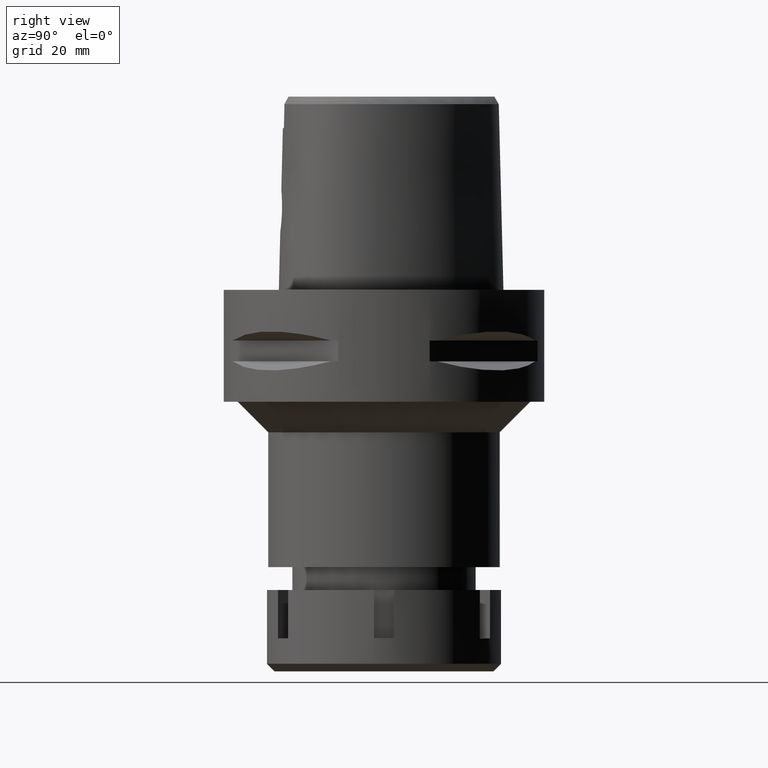
[diagram: clean part render]
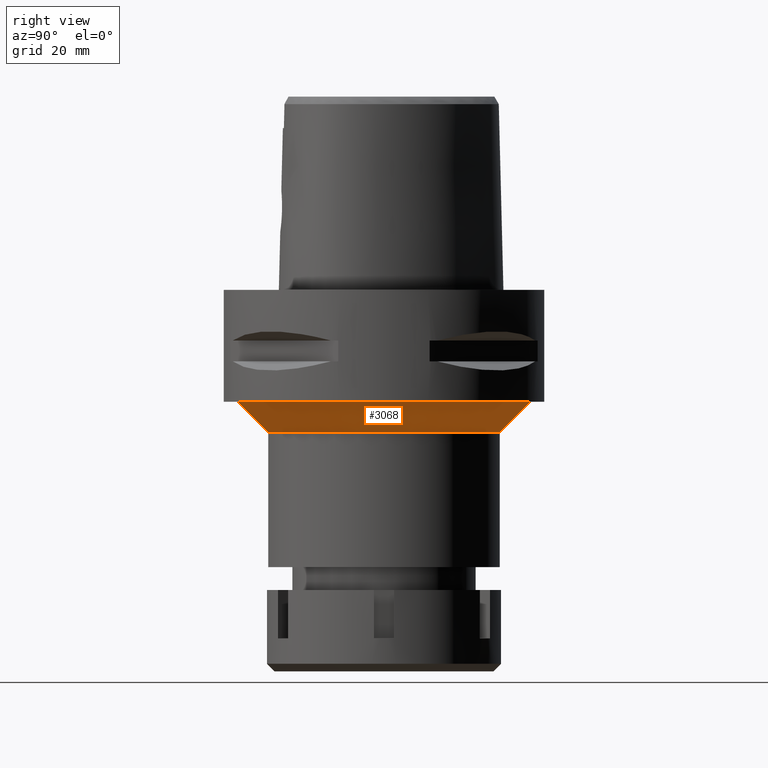
[diagram: same view with one face highlighted and labeled with its STEP entity id]
A machine part, right view. The second image highlights one B-rep face of the part: STEP entity #3068.
In plain terms, the highlighted conical surface has half-angle 45 deg.
Its self-contained STEP definition (entity closure, byte-faithful):
#315 = CONICAL_SURFACE ( 'NONE', #3606, 25.75000000000000000, 0.7853981633972997312 ) ;
#327 = CARTESIAN_POINT ( 'NONE',  ( 0.0000000000000000000, 0.0000000000000000000, -25.00000000000000000 ) ) ;
#666 = AXIS2_PLACEMENT_3D ( 'NONE', #1339, #4212, #3060 ) ;
#769 = AXIS2_PLACEMENT_3D ( 'NONE', #2936, #3271, #777 ) ;
#777 = DIRECTION ( 'NONE',  ( 0.0000000000000000000, 1.000000000000000000, 0.0000000000000000000 ) ) ;
#782 = EDGE_LOOP ( 'NONE', ( #2649, #1687, #2759, #1644 ) ) ;
#884 = DIRECTION ( 'NONE',  ( 0.0000000000000000000, 0.7071067811865474617, -0.7071067811865474617 ) ) ;
#1302 = CARTESIAN_POINT ( 'NONE',  ( 0.0000000000000000000, -28.75000000000000000, -22.00000000000000000 ) ) ;
#1339 = CARTESIAN_POINT ( 'NONE',  ( 0.0000000000000000000, 0.0000000000000000000, -28.00000000000000000 ) ) ;
#1644 = ORIENTED_EDGE ( 'NONE', *, *, #3957, .F. ) ;
#1687 = ORIENTED_EDGE ( 'NONE', *, *, #2872, .T. ) ;
#1921 = VERTEX_POINT ( 'NONE', #3733 ) ;
#2051 = EDGE_CURVE ( 'NONE', #3387, #2294, #5081, .T. ) ;
#2294 = VERTEX_POINT ( 'NONE', #4000 ) ;
#2649 = ORIENTED_EDGE ( 'NONE', *, *, #2051, .T. ) ;
#2665 = CARTESIAN_POINT ( 'NONE',  ( 0.0000000000000000000, 28.75000000000000000, -22.00000000000000000 ) ) ;
#2759 = ORIENTED_EDGE ( 'NONE', *, *, #3418, .F. ) ;
#2872 = EDGE_CURVE ( 'NONE', #2294, #4677, #5070, .T. ) ;
#2936 = CARTESIAN_POINT ( 'NONE',  ( 0.0000000000000000000, 0.0000000000000000000, -22.00000000000000000 ) ) ;
#3060 = DIRECTION ( 'NONE',  ( 0.0000000000000000000, 1.000000000000000000, 0.0000000000000000000 ) ) ;
#3068 = ADVANCED_FACE ( 'NONE', ( #5374 ), #315, .T. ) ;
#3266 = DIRECTION ( 'NONE',  ( 0.0000000000000000000, 0.0000000000000000000, 1.000000000000000000 ) ) ;
#3271 = DIRECTION ( 'NONE',  ( 0.0000000000000000000, 0.0000000000000000000, -1.000000000000000000 ) ) ;
#3387 = VERTEX_POINT ( 'NONE', #3441 ) ;
#3418 = EDGE_CURVE ( 'NONE', #1921, #4677, #5061, .T. ) ;
#3441 = CARTESIAN_POINT ( 'NONE',  ( 0.0000000000000000000, 28.75000000000000000, -22.00000000000000000 ) ) ;
#3606 = AXIS2_PLACEMENT_3D ( 'NONE', #327, #3266, #3707 ) ;
#3707 = DIRECTION ( 'NONE',  ( 0.0000000000000000000, 1.000000000000000000, 0.0000000000000000000 ) ) ;
#3733 = CARTESIAN_POINT ( 'NONE',  ( 0.0000000000000000000, 22.75000000000000000, -28.00000000000000000 ) ) ;
#3927 = LINE ( 'NONE', #2665, #4805 ) ;
#3952 = VECTOR ( 'NONE', #884, 1000.000000000000114 ) ;
#3957 = EDGE_CURVE ( 'NONE', #3387, #1921, #3927, .T. ) ;
#4000 = CARTESIAN_POINT ( 'NONE',  ( 0.0000000000000000000, -28.75000000000000000, -22.00000000000000000 ) ) ;
#4212 = DIRECTION ( 'NONE',  ( 0.0000000000000000000, 0.0000000000000000000, -1.000000000000000000 ) ) ;
#4393 = CARTESIAN_POINT ( 'NONE',  ( 0.0000000000000000000, -22.75000000000000000, -28.00000000000000000 ) ) ;
#4677 = VERTEX_POINT ( 'NONE', #4393 ) ;
#4805 = VECTOR ( 'NONE', #5187, 1000.000000000000114 ) ;
#5061 = CIRCLE ( 'NONE', #666, 22.75000000000000000 ) ;
#5070 = LINE ( 'NONE', #1302, #3952 ) ;
#5081 = CIRCLE ( 'NONE', #769, 28.75000000000000000 ) ;
#5187 = DIRECTION ( 'NONE',  ( 0.0000000000000000000, -0.7071067811865474617, -0.7071067811865474617 ) ) ;
#5374 = FACE_OUTER_BOUND ( 'NONE', #782, .T. ) ;